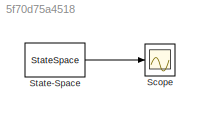
MODEL slx_5f70d75a4518
KIND model
CONFIG AbsTol = auto
CONFIG EnableMultiTasking = off
CONFIG FixedStep = auto
CONFIG MaxStep = auto
CONFIG MinStep = auto
CONFIG RelTol = 1e-3
CONFIG SampleTimeConstraint = Unconstrained
CONFIG SolverName = VariableStepAuto
CONFIG StartTime = 0.0
CONFIG StopTime = 10.0
BLOCK [Scope] Scope
  Floating = off
  NumInputPorts = 1
  Ports = [1]
  ScopeSpecificationString = Simulink.scopes.TimeScopeBlockCfg('CurrentConfiguration', extmgr.ConfigurationSet(extmgr.Configuration('Core','General UI',true,'FigureColor',[1 1 1]),extmgr.Configuration('Core','Source UI',true),extmgr.Configuration('Sources','WiredSimulink',true),extmgr.Configuration('Visuals','Time Domain',true,'SerializedDisplays',{struct('MinYLimReal','-1.08148','MaxYLimReal','1.28877','YLabelReal','','MinYL...<+1684ch>
BLOCK [StateSpace] State-Space
  A = [-1 0 2; -3 -3 4; -2 0 -1]
  B = []
  C = [1,0,0;0,1,0;0,0,1]
  D = []
  InitialCondition = [1,1,1]
  Ports = [0, 1]
LINE State-Space:1 -> Scope:1
